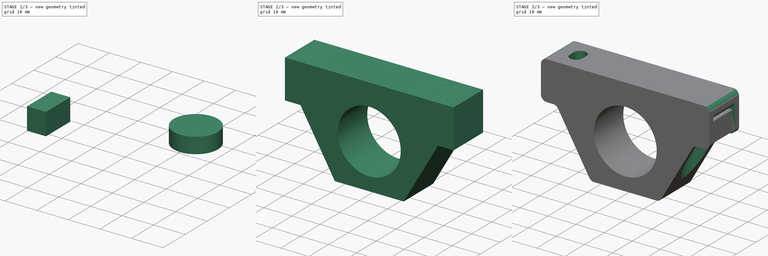
[diagram: build sequence overview — one tinted view per stage of 3, left to right]
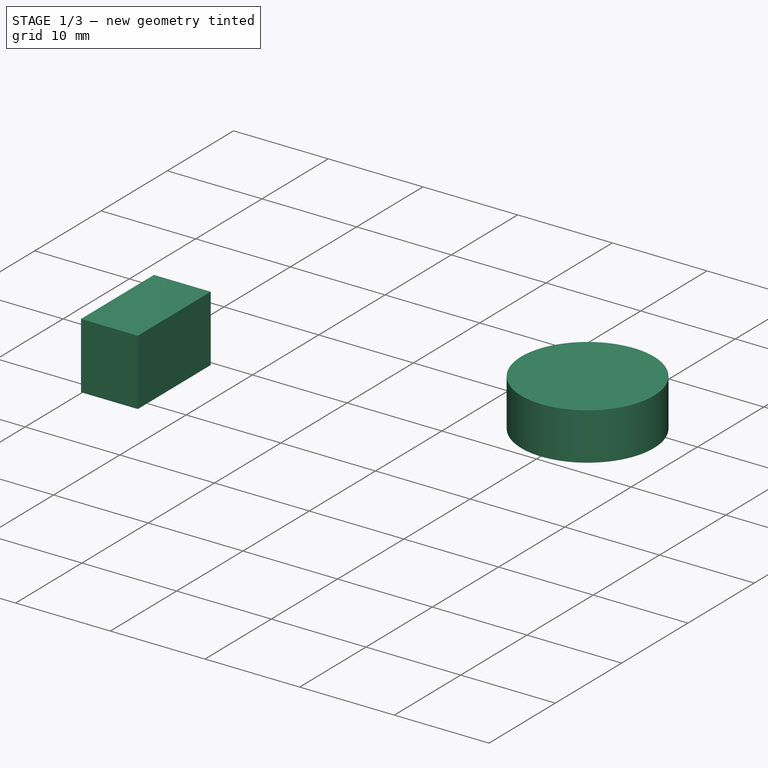
[diagram: stage 1 of 3 — iso view after this stage's code; geometry added in this stage tinted green]
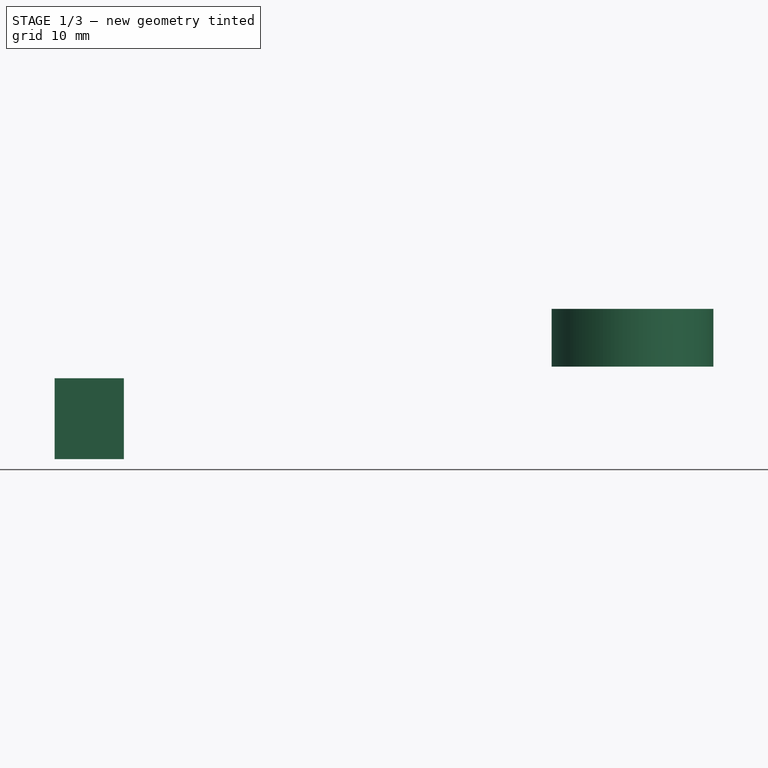
[diagram: stage 1 of 3 — front view after this stage's code; geometry added in this stage tinted green]
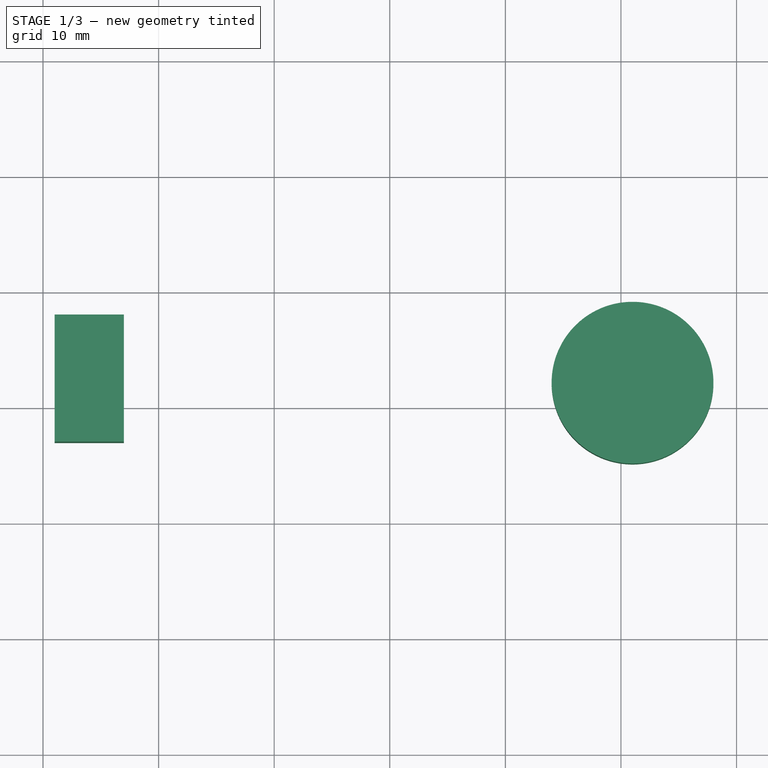
[diagram: stage 1 of 3 — top view after this stage's code; geometry added in this stage tinted green]
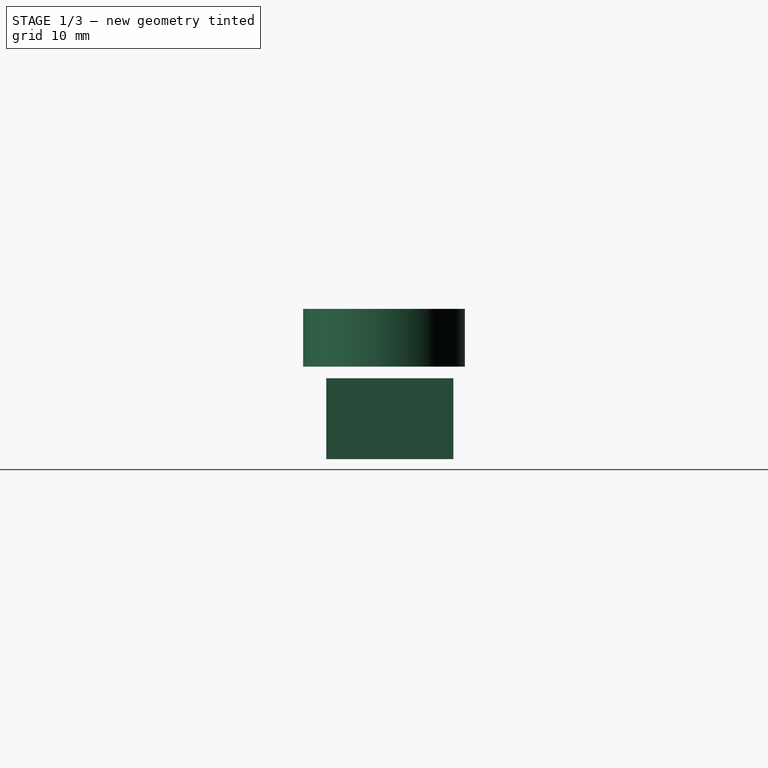
[diagram: stage 1 of 3 — right view after this stage's code; geometry added in this stage tinted green]
FCSTD DOCUMENT  (FreeCAD 0.18R16117 (Git))
Label: Isuzu_SensorBracket_mk6
License: All rights reserved
LicenseURL: http://en.wikipedia.org/wiki/All_rights_reserved
objects: Sketcher::SketchObject×3, PartDesign::Pocket×2, Part::Mirroring×2, PartDesign::Pad×1, PartDesign::Fillet×1, PartDesign::Body×1, Part::Box×1, Part::Cylinder×1
note: 15 computed .brp shape members not serialized (recipe doc carries the construction recipe); baked Part::Feature solids carry a one-line shape summary decoded from their .brp

FEATURE [PartDesign::Body] Body
  Group = -> [Sketch,Pad,Sketch001,Pocket,Sketch002,Pocket001,Fillet]
  Origin = -> Origin
  Tip = -> Fillet
FEATURE [Part::Box] Box  label="Cube"
  AttacherType = Attacher::AttachEngine3D
  Height = 7
  Length = 6
  Placement = pos=(-29,-13,6) rot=(0,0,1;0rad)
  Width = 11
FEATURE [Part::Cylinder] Cylinder
  Angle = 360
  AttacherType = Attacher::AttachEngine3D
  Height = 5
  Placement = pos=(-21,-8,14) rot=(0,0,1;0rad)
  Radius = 7
FEATURE [Part::Mirroring] Part__Mirroring001  label="density infill"
  Base = (0,0,0)
  Normal = (1,0,0)
  Source = -> Cylinder
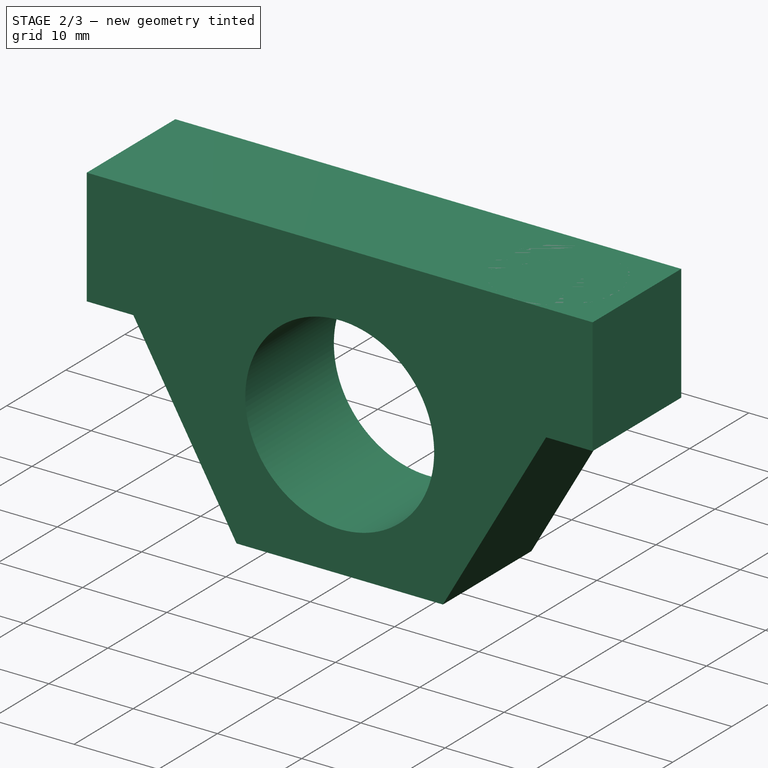
[diagram: stage 2 of 3 — iso view after this stage's code; geometry added in this stage tinted green]
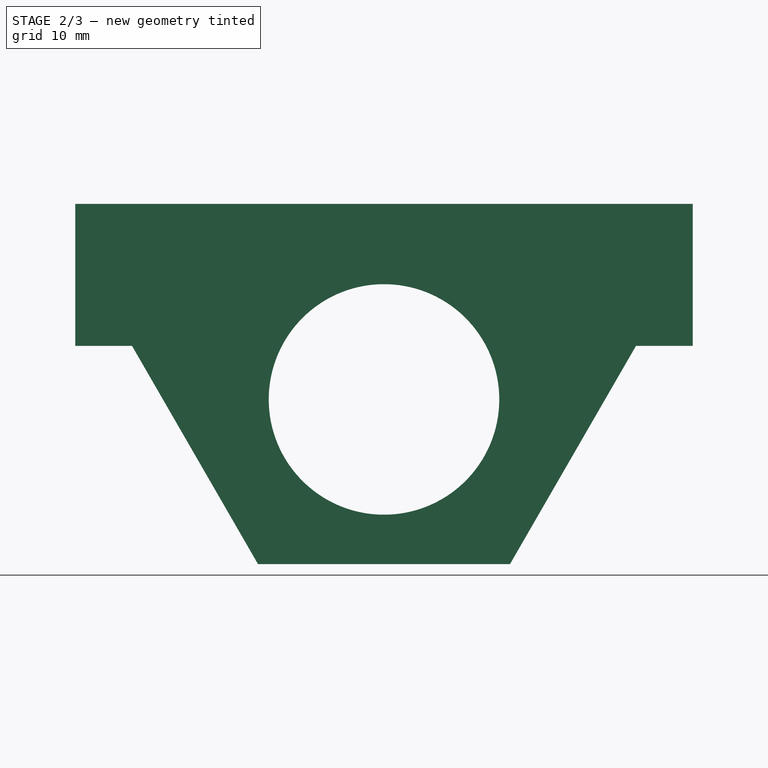
[diagram: stage 2 of 3 — front view after this stage's code; geometry added in this stage tinted green]
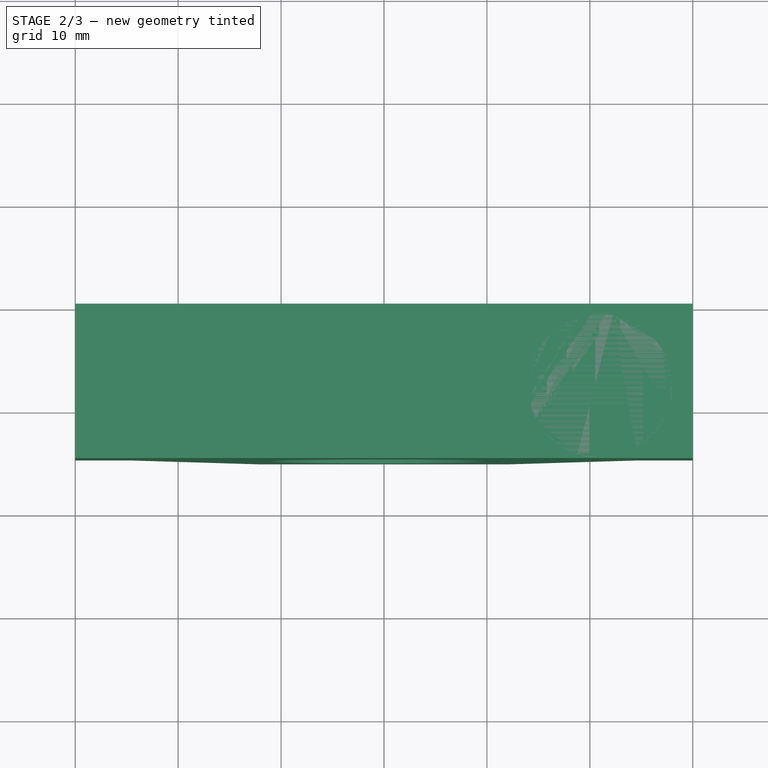
[diagram: stage 2 of 3 — top view after this stage's code; geometry added in this stage tinted green]
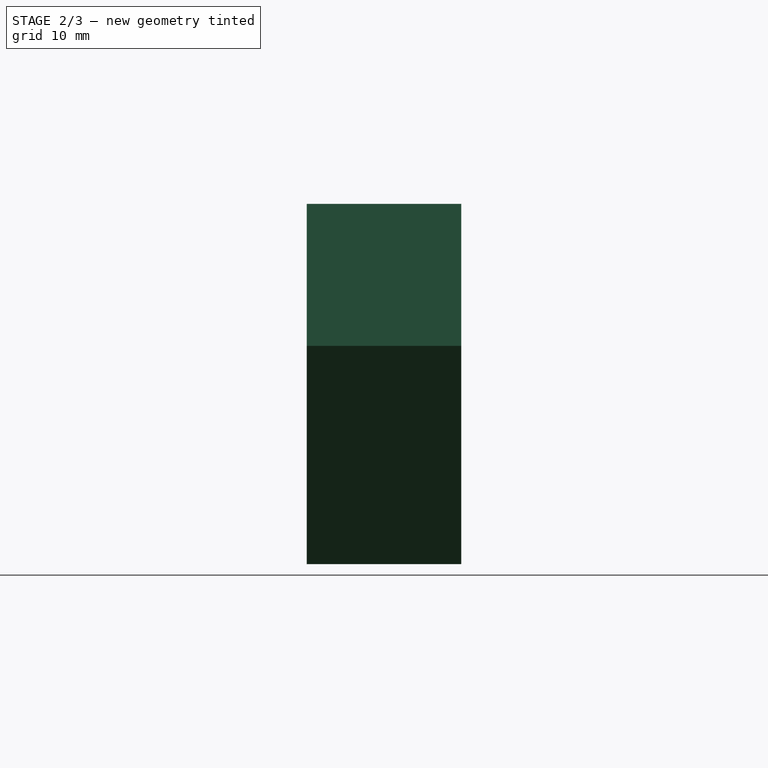
[diagram: stage 2 of 3 — right view after this stage's code; geometry added in this stage tinted green]
FEATURE [Sketcher::SketchObject] Sketch
  MapMode = 5
  Placement = pos=(0,0,0) rot=(1,0,0;1.5708rad)
  Support = -> [XZ_Plane]
  sketch-geometry (14):
    g0: Circle CenterX=0 CenterY=0 CenterZ=0 NormalX=0 NormalY=0 NormalZ=1 AngleXU=0 Radius=11.2
    g1: LineSegment StartX=12.2398 StartY=-16 StartZ=0 EndX=24.4797 EndY=5.2 EndZ=0
    g2: LineSegment [constr] StartX=24.4797 StartY=5.2 StartZ=0 EndX=12.2398 EndY=26.4 EndZ=0
    g3: LineSegment [constr] StartX=12.2398 StartY=26.4 StartZ=0 EndX=-12.2398 EndY=26.4 EndZ=0
    g4: LineSegment [constr] StartX=-12.2398 StartY=26.4 StartZ=0 EndX=-24.4797 EndY=5.2 EndZ=0
    g5: LineSegment StartX=-24.4797 StartY=5.2 StartZ=0 EndX=-12.2398 EndY=-16 EndZ=0
    g6: LineSegment StartX=-12.2398 StartY=-16 StartZ=0 EndX=12.2398 EndY=-16 EndZ=0
    g7: Circle [constr] CenterX=0 CenterY=5.2 CenterZ=0 NormalX=0 NormalY=0 NormalZ=1 AngleXU=0 Radius=24.4797
    g8: LineSegment StartX=-30 StartY=19 StartZ=0 EndX=30 EndY=19 EndZ=0
    g9: LineSegment StartX=30 StartY=19 StartZ=0 EndX=30 EndY=5.2 EndZ=0
    g10: LineSegment [constr] StartX=30 StartY=5.2 StartZ=0 EndX=-30 EndY=5.2 EndZ=0
    g11: LineSegment StartX=-30 StartY=5.2 StartZ=0 EndX=-30 EndY=19 EndZ=0
    g12: LineSegment StartX=-30 StartY=5.2 StartZ=0 EndX=-24.4797 EndY=5.2 EndZ=0
    g13: LineSegment StartX=24.4797 StartY=5.2 StartZ=0 EndX=30 EndY=5.2 EndZ=0
  constraints (34):
    c: Coincident(g0,g-1)
    c: Coincident(g1,g2)
    c: Coincident(g2,g3)
    c: Coincident(g3,g4)
    c: Coincident(g4,g5)
    c: Coincident(g5,g6)
    c: Coincident(g6,g1)
    c: Equal(g1, g2-g6) x5
    c: PointOnObject(g1,g7)
    c: PointOnObject(g2,g7)
    c: PointOnObject(g3,g7)
    c: PointOnObject(g4,g7)
    c: PointOnObject(g5,g7)
    c: PointOnObject(g6,g7)
    c: PointOnObject(g7,g-2)
    c: Horizontal(g6)
    c: Coincident(g8,g9)
    c: Coincident(g9,g10)
    c: Coincident(g10,g11)
    c: Coincident(g11,g8)
    c: Horizontal(g10)
    c: Vertical(g9)
    c: Vertical(g11)
    c: PointOnObject(g5,g10)
    c: Coincident(g12,g11)
    c: Coincident(g12,g5)
    c: Coincident(g13,g1)
    c: Coincident(g13,g9)
    c: Distance(g0,g8) = 19
    c: Distance(g0,g6) = 16
    c: Symmetric(g8,g8,g-2)
    c: Distance(g8) = 60
    c: Distance(g7,g0) = 5.2
    c: Diameter(g0) = 22.4
FEATURE [PartDesign::Pad] Pad
  Length = 15
  Length2 = 100
  Placement = pos=(0,0,0) rot=(1,0,0;1.5708rad)
  Profile = -> Sketch
  Type = 0
FEATURE [Part::Mirroring] Part__Mirroring  label="support cube"
  Base = (0,0,0)
  Normal = (1,0,0)
  Source = -> Box
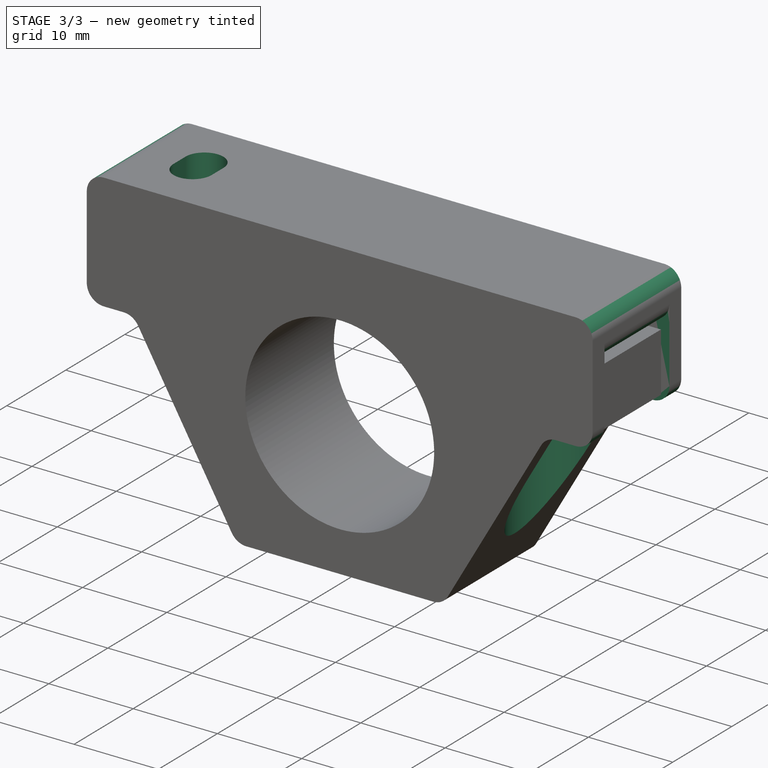
[diagram: stage 3 of 3 — iso view after this stage's code; geometry added in this stage tinted green]
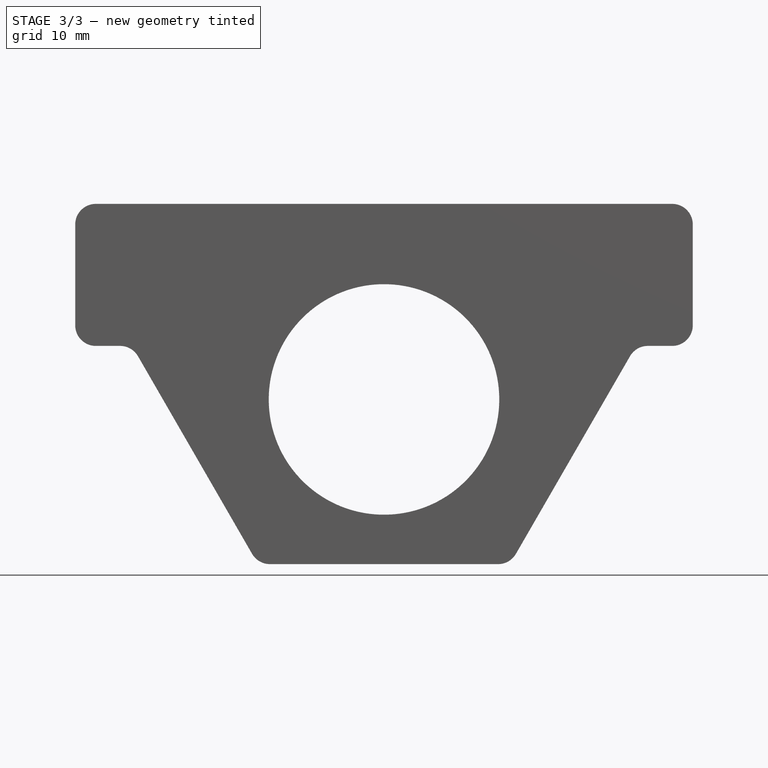
[diagram: stage 3 of 3 — front view after this stage's code; geometry added in this stage tinted green]
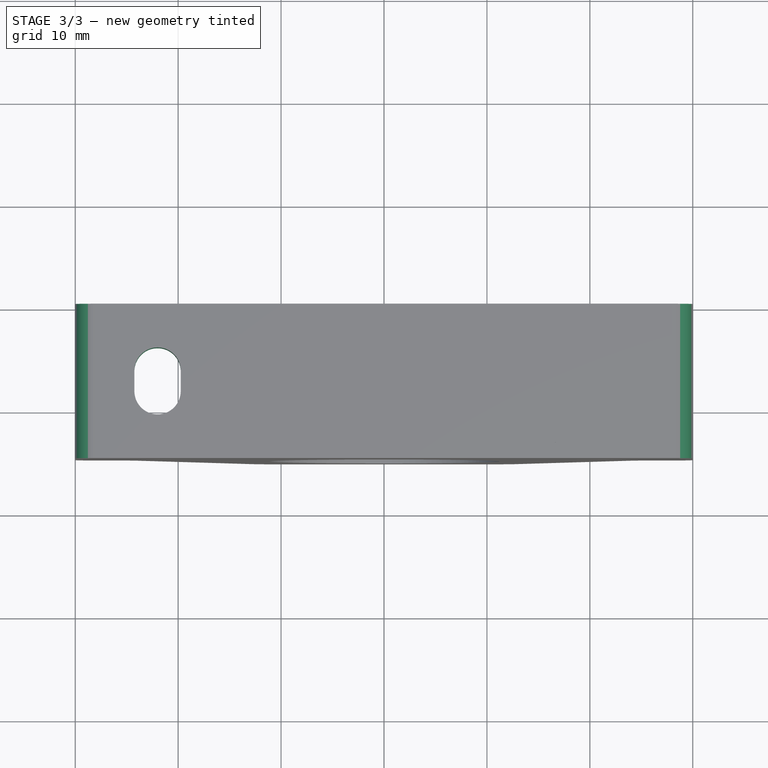
[diagram: stage 3 of 3 — top view after this stage's code; geometry added in this stage tinted green]
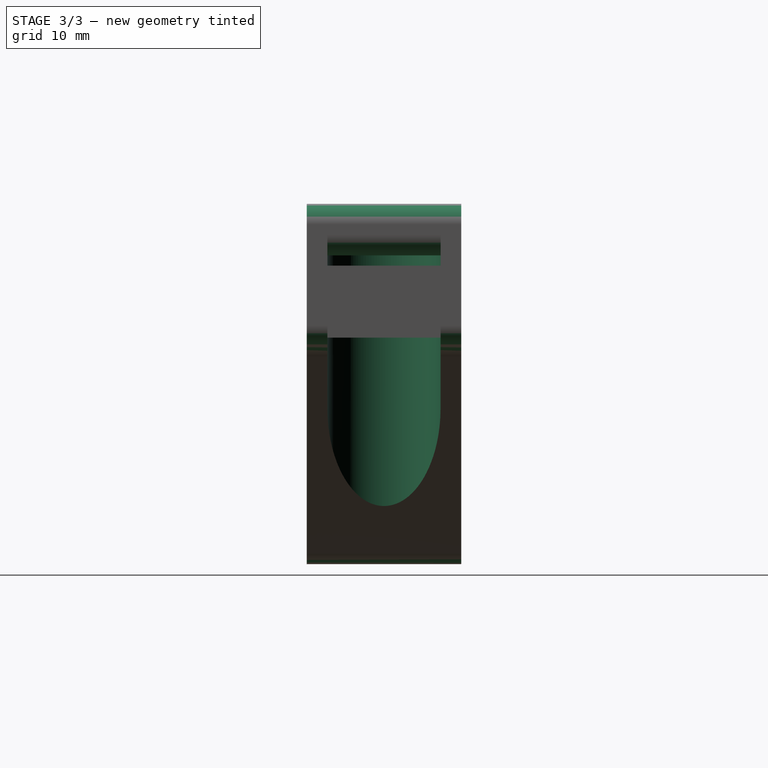
[diagram: stage 3 of 3 — right view after this stage's code; geometry added in this stage tinted green]
FEATURE [Sketcher::SketchObject] Sketch001
  ExternalGeometry = -> [Pad]
  MapMode = 5
  Placement = pos=(-8e-16,3.5e-15,5.2) rot=(1,0,0;3.14159rad)
  Support = -> [Pad]
  sketch-geometry (8):
    g0: ArcOfCircle CenterX=-30 CenterY=7.5 CenterZ=0 NormalX=0 NormalY=0 NormalZ=1 AngleXU=0 Radius=5.5 StartAngle=1.5708 EndAngle=4.71239
    g1: ArcOfCircle CenterX=-21 CenterY=7.5 CenterZ=0 NormalX=0 NormalY=0 NormalZ=1 AngleXU=0 Radius=5.5 StartAngle=4.71239 EndAngle=7.85398
    g2: LineSegment StartX=-30 StartY=2 StartZ=0 EndX=-21 EndY=2 EndZ=0
    g3: LineSegment StartX=-30 StartY=13 StartZ=0 EndX=-21 EndY=13 EndZ=0
    g4: ArcOfCircle CenterX=30 CenterY=7.5 CenterZ=0 NormalX=0 NormalY=0 NormalZ=1 AngleXU=0 Radius=5.5 StartAngle=4.71239 EndAngle=7.85398
    g5: ArcOfCircle CenterX=21 CenterY=7.5 CenterZ=0 NormalX=0 NormalY=0 NormalZ=1 AngleXU=0 Radius=5.5 StartAngle=1.5708 EndAngle=4.71239
    g6: LineSegment StartX=30 StartY=13 StartZ=0 EndX=21 EndY=13 EndZ=0
    g7: LineSegment StartX=30 StartY=2 StartZ=0 EndX=21 EndY=2 EndZ=0
  constraints (19):
    c: Tangent(g0,g3) = 1.5708
    c: Tangent(g0,g2) = -1.5708
    c: Tangent(g2,g1) = -1.5708
    c: Tangent(g3,g1) = 1.5708
    c: Horizontal(g2)
    c: Equal(g0,g1)
    c: Diameter(g0) = 11
    c: PointOnObject(g0,g-3)
    c: Tangent(g4,g7) = 1.5708
    c: Tangent(g4,g6) = -1.5708
    c: Tangent(g6,g5) = -1.5708
    c: Tangent(g7,g5) = 1.5708
    c: Horizontal(g6)
    c: Equal(g4,g5)
    c: Equal(g5,g1)
    c: Equal(g6,g3)
    c: Distance(g1,g0) = 9
    c: Symmetric(g1,g5,g-2)
    c: Distance(g0,g-5) = 2
FEATURE [PartDesign::Pocket] Pocket
  BaseFeature = -> Pad
  Length = 8.8
  Length2 = 100
  Placement = pos=(0,0,0) rot=(1,0,0;1.5708rad)
  Profile = -> Sketch001
  Type = 4
FEATURE [Sketcher::SketchObject] Sketch002
  ExternalGeometry = -> [Pocket]
  MapMode = 5
  Placement = pos=(0,2.11e-14,19) rot=(0,0,1;3.14159rad)
  Support = -> [Pocket]
  sketch-geometry (11):
    g0: ArcOfCircle CenterX=-22 CenterY=8.5 CenterZ=0 NormalX=0 NormalY=0 NormalZ=1 AngleXU=0 Radius=2.25 StartAngle=-9e-16 EndAngle=3.14159
    g1: ArcOfCircle CenterX=-22 CenterY=6.5 CenterZ=0 NormalX=0 NormalY=0 NormalZ=1 AngleXU=0 Radius=2.25 StartAngle=3.14159 EndAngle=6.28319
    g2: LineSegment StartX=-24.25 StartY=8.5 StartZ=0 EndX=-24.25 EndY=6.5 EndZ=0
    g3: LineSegment StartX=-19.75 StartY=8.5 StartZ=0 EndX=-19.75 EndY=6.5 EndZ=0
    g4: ArcOfCircle CenterX=22 CenterY=8.5 CenterZ=0 NormalX=0 NormalY=0 NormalZ=1 AngleXU=0 Radius=2.25 StartAngle=5e-16 EndAngle=3.14159
    g5: ArcOfCircle CenterX=22 CenterY=6.5 CenterZ=0 NormalX=0 NormalY=0 NormalZ=1 AngleXU=0 Radius=2.25 StartAngle=3.14159 EndAngle=6.28319
    g6: LineSegment StartX=19.75 StartY=8.5 StartZ=0 EndX=19.75 EndY=6.5 EndZ=0
    g7: LineSegment StartX=24.25 StartY=8.5 StartZ=0 EndX=24.25 EndY=6.5 EndZ=0
    g8: LineSegment [constr] StartX=30 StartY=0 StartZ=0 EndX=0 EndY=7.5 EndZ=0
    g9: LineSegment [constr] StartX=-1.4e-15 StartY=7.5 StartZ=0 EndX=-30 EndY=15 EndZ=0
    g10: LineSegment [constr] StartX=30 StartY=7.5 StartZ=0 EndX=-30 EndY=7.5 EndZ=0
  constraints (27):
    c: Tangent(g0,g3) = 1.5708
    c: Tangent(g0,g2) = -1.5708
    c: Tangent(g2,g1) = -1.5708
    c: Tangent(g3,g1) = 1.5708
    c: Vertical(g2)
    c: Equal(g0,g1)
    c: Tangent(g4,g7) = 1.5708
    c: Tangent(g4,g6) = -1.5708
    c: Tangent(g6,g5) = -1.5708
    c: Tangent(g7,g5) = 1.5708
    c: Vertical(g6)
    c: Equal(g4,g5)
    c: Symmetric(g4,g0,g-2)
    c: Equal(g5,g1)
    c: Equal(g6,g3)
    c: Diameter(g5) = 4.5
    c: Distance(g5,g4) = 2
    c: DistanceX(g-2,g4) = 22
    c: Coincident(g8,g-3)
    c: Coincident(g9,g8)
    c: Coincident(g9,g-4)
    c: Equal(g8,g9)
    c: Parallel(g9,g8)
    c: PointOnObject(g10,g-3)
    c: PointOnObject(g8,g10)
    c: PointOnObject(g10,g-4)
    c: Symmetric(g0,g1,g10)
FEATURE [PartDesign::Pocket] Pocket001
  BaseFeature = -> Pocket
  Length = 5
  Length2 = 100
  Placement = pos=(0,0,0) rot=(1,0,0;1.5708rad)
  Profile = -> Sketch002
  Type = 0
FEATURE [PartDesign::Fillet] Fillet
  Base = -> Pocket001 [Edge27,Edge13,Edge38,Edge42,Edge35,Edge40,Edge33,Edge29,Edge2,Edge4,Edge26,Edge22,Edge24,Edge15]
  BaseFeature = -> Pocket001
  Placement = pos=(0,0,0) rot=(1,0,0;1.5708rad)
  Radius = 2
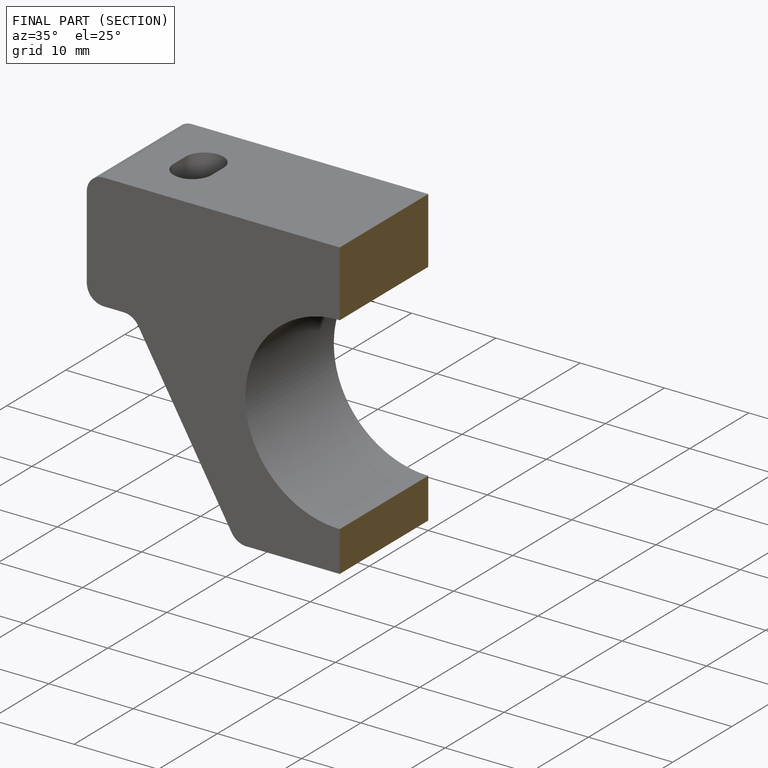
[diagram: finished part — half-section view (interior)]
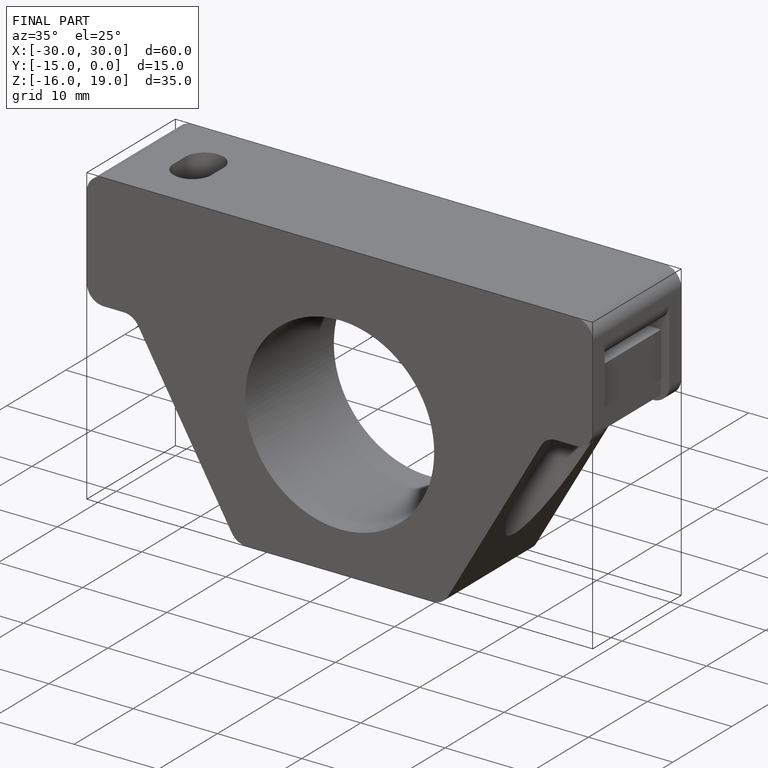
[diagram: finished part — iso view with bounding-box wireframe]
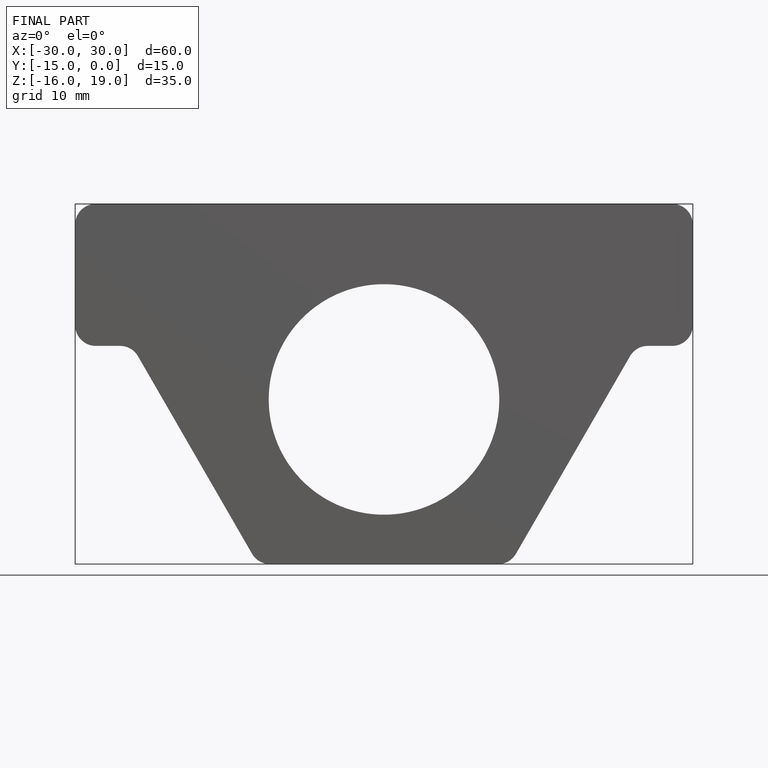
[diagram: finished part — front view with bounding-box wireframe]
